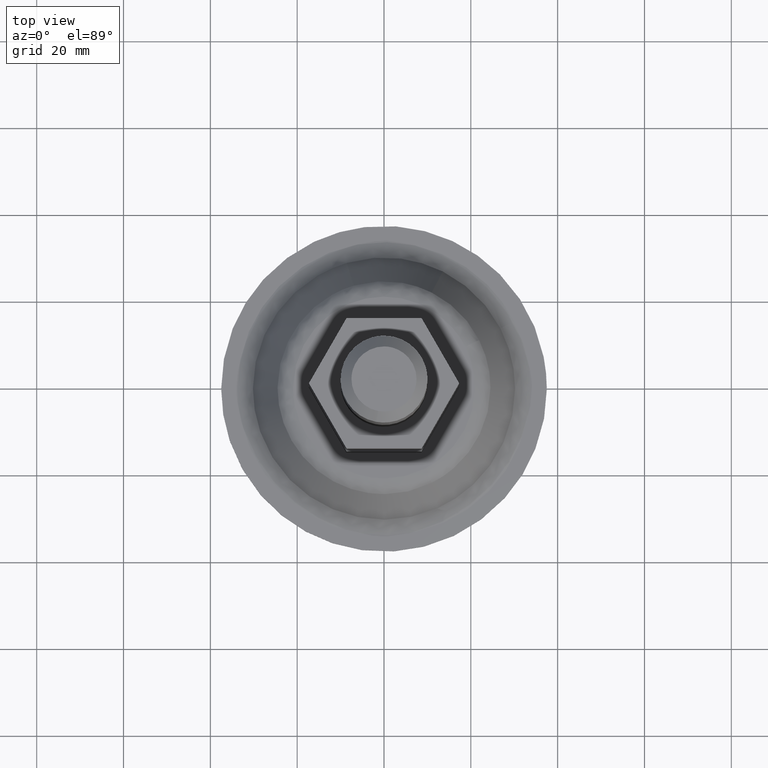
[diagram: clean part render]
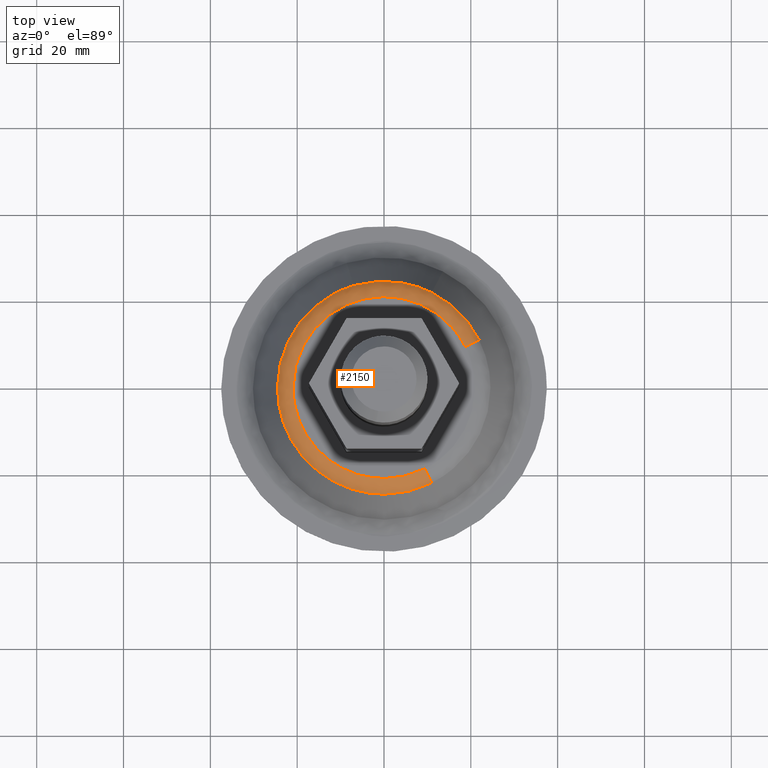
[diagram: same view with one face highlighted and labeled with its STEP entity id]
A machine part, top view. The second image highlights one B-rep face of the part: STEP entity #2150.
In plain terms, the highlighted face is a freeform B-spline surface patch.
Its self-contained STEP definition (entity closure, byte-faithful):
#1388=CARTESIAN_POINT('',(10.983786301854231,21.932624189664441,15.762949531433030));
#1389=VERTEX_POINT('',#1388);
#1395=CARTESIAN_POINT('',(21.925249911092710,10.998499066040230,15.762949531445390));
#1396=VERTEX_POINT('',#1395);
#1397=CARTESIAN_POINT('',(10.983786301854234,21.932624189664441,15.762949531433037));
#1398=CARTESIAN_POINT('',(18.270965896765706,18.283228534961623,15.762949531439100));
#1399=CARTESIAN_POINT('',(21.925249911092706,10.998499066040228,15.762949531445397));
#1407=(BOUNDED_CURVE()B_SPLINE_CURVE(2,(#1397,#1398,#1399),.UNSPECIFIED.,.F.,.U.)B_SPLINE_CURVE_WITH_KNOTS((3,3),(0.326127052925012,0.423769062115704),.UNSPECIFIED.)CURVE()GEOMETRIC_REPRESENTATION_ITEM()RATIONAL_B_SPLINE_CURVE((0.875940413897200,0.831213953431449,0.875845342762707))REPRESENTATION_ITEM(''));
#1408=EDGE_CURVE('',#1389,#1396,#1407,.T.);
#1425=CARTESIAN_POINT('',(10.998499066033020,-21.925249911063101,15.762949531505869));
#1426=VERTEX_POINT('',#1425);
#1440=CARTESIAN_POINT('',(-24.529238988803549,0.0,15.762949531433700));
#1441=VERTEX_POINT('',#1440);
#1442=CARTESIAN_POINT('',(10.998499066033018,-21.925249911063105,15.762949531505871));
#1443=CARTESIAN_POINT('',(5.807507917928271,-24.529238988803552,15.762949531433703));
#1444=CARTESIAN_POINT('',(0.0,-24.529238988803549,15.762949531433700));
#1445=CARTESIAN_POINT('',(-24.529238988803549,-24.529238988803549,15.762949531433700));
#1446=CARTESIAN_POINT('',(-24.529238988803549,0.0,15.762949531433700));
#1454=(BOUNDED_CURVE()B_SPLINE_CURVE(2,(#1442,#1443,#1444,#1445,#1446),.UNSPECIFIED.,.F.,.U.)B_SPLINE_CURVE_WITH_KNOTS((3,2,3),(0.673769062115617,0.750000000000000,1.0),.UNSPECIFIED.)CURVE()GEOMETRIC_REPRESENTATION_ITEM()RATIONAL_B_SPLINE_CURVE((0.875845342762628,0.910689900919499,1.0,0.707106781186547,1.0))REPRESENTATION_ITEM(''));
#1455=EDGE_CURVE('',#1426,#1441,#1454,.T.);
#1457=CARTESIAN_POINT('',(-6.966677018124205,23.519117190267480,15.762953819341680));
#1458=VERTEX_POINT('',#1457);
#1459=CARTESIAN_POINT('',(-24.529238988803549,0.0,15.762949531433700));
#1460=CARTESIAN_POINT('',(-24.529238689827292,18.316852667902086,15.762951675387692));
#1461=CARTESIAN_POINT('',(-6.966677018124205,23.519117190267480,15.762953819341678));
#1469=(BOUNDED_CURVE()B_SPLINE_CURVE(2,(#1459,#1460,#1461),.UNSPECIFIED.,.F.,.U.)B_SPLINE_CURVE_WITH_KNOTS((3,3),(0.0,0.201641535167744),.UNSPECIFIED.)CURVE()GEOMETRIC_REPRESENTATION_ITEM()RATIONAL_B_SPLINE_CURVE((1.0,0.763762246872934,0.908607239386829))REPRESENTATION_ITEM(''));
#1470=EDGE_CURVE('',#1441,#1458,#1469,.T.);
#1572=CARTESIAN_POINT('',(-6.966677018124205,23.519117190267480,15.762953819341678));
#1573=CARTESIAN_POINT('',(-3.556568489665340,24.529237340706974,15.762953032227411));
#1574=CARTESIAN_POINT('',(0.000000370626319,24.529237737570050,15.762952189238099));
#1575=CARTESIAN_POINT('',(5.798818839446494,24.529238384636653,15.762950814783634));
#1576=CARTESIAN_POINT('',(10.983786301854234,21.932624189664441,15.762949531433037));
#1584=(BOUNDED_CURVE()B_SPLINE_CURVE(2,(#1572,#1573,#1574,#1575,#1576),.UNSPECIFIED.,.F.,.U.)B_SPLINE_CURVE_WITH_KNOTS((3,2,3),(0.201641535167744,0.250000000000000,0.326127052925012),.UNSPECIFIED.)CURVE()GEOMETRIC_REPRESENTATION_ITEM()RATIONAL_B_SPLINE_CURVE((0.908607239386829,0.943344534313614,1.0,0.910811609720045,0.875940413897200))REPRESENTATION_ITEM(''));
#1585=EDGE_CURVE('',#1458,#1389,#1584,.T.);
#2053=CARTESIAN_POINT('',(9.294642899871809,-18.528652608911848,17.994512284984971));
#2054=CARTESIAN_POINT('',(-9.234009709040031,-27.823295508783666,17.994512284984971));
#2055=CARTESIAN_POINT('',(-18.528652608911848,-9.294642899871811,17.994512284984971));
#2056=CARTESIAN_POINT('',(-27.823295508783666,9.234009709040031,17.994512284984971));
#2057=CARTESIAN_POINT('',(-9.294642899871812,18.528652608911848,17.994512284984971));
#2058=CARTESIAN_POINT('',(9.234009709040029,27.823295508783666,17.994512284984971));
#2059=CARTESIAN_POINT('',(18.528652608911838,9.294642899871812,17.994512284984971));
#2060=CARTESIAN_POINT('',(10.545410726679879,-21.022028934068988,18.140782316382250));
#2061=CARTESIAN_POINT('',(-10.476618207389107,-31.567439660748860,18.140782316382243));
#2062=CARTESIAN_POINT('',(-21.022028934068988,-10.545410726679879,18.140782316382250));
#2063=CARTESIAN_POINT('',(-31.567439660748860,10.476618207389107,18.140782316382243));
#2064=CARTESIAN_POINT('',(-10.545410726679885,21.022028934068988,18.140782316382250));
#2065=CARTESIAN_POINT('',(10.476618207389103,31.567439660748860,18.140782316382243));
#2066=CARTESIAN_POINT('',(21.022028934068988,10.545410726679885,18.140782316382250));
#2067=CARTESIAN_POINT('',(11.037727055620422,-22.003449988207585,15.572285105118571));
#2068=CARTESIAN_POINT('',(-10.965722932587171,-33.041177043828014,15.572285105118565));
#2069=CARTESIAN_POINT('',(-22.003449988207585,-11.037727055620422,15.572285105118571));
#2070=CARTESIAN_POINT('',(-33.041177043828014,10.965722932587168,15.572285105118565));
#2071=CARTESIAN_POINT('',(-11.037727055620433,22.003449988207585,15.572285105118571));
#2072=CARTESIAN_POINT('',(10.965722932587166,33.041177043828014,15.572285105118565));
#2073=CARTESIAN_POINT('',(22.003449988207585,11.037727055620433,15.572285105118571));
#2081=(BOUNDED_SURFACE()B_SPLINE_SURFACE(2,2,((#2053,#2060,#2067),(#2054,#2061,#2068),(#2055,#2062,#2069),(#2056,#2063,#2070),(#2057,#2064,#2071),(#2058,#2065,#2072),(#2059,#2066,#2073)),.UNSPECIFIED.,.F.,.F.,.U.)B_SPLINE_SURFACE_WITH_KNOTS((3,2,2,3),(3,3),(0.0,40.786328124221413,81.572656248442826,122.358984372664200),(0.0,5.033719259317195),.UNSPECIFIED.)GEOMETRIC_REPRESENTATION_ITEM()RATIONAL_B_SPLINE_SURFACE(((0.923693141034011,0.756838403288658,0.922540802781788),(0.653149683760651,0.535165567227809,0.652334857568283),(0.923693141034011,0.756838403288658,0.922540802781788),(0.653149683760651,0.535165567227809,0.652334857568283),(0.923693141034011,0.756838403288658,0.922540802781788),(0.653149683760651,0.535165567227809,0.652334857568283),(0.923693141034011,0.756838403288658,0.922540802781788)))REPRESENTATION_ITEM('')SURFACE());
#2082=CARTESIAN_POINT('',(9.388559229795927,-18.715872609618781,18.000000000000099));
#2083=VERTEX_POINT('',#2082);
#2084=CARTESIAN_POINT('',(-20.938694608125552,0.0,18.0));
#2085=VERTEX_POINT('',#2084);
#2086=CARTESIAN_POINT('',(9.388559229795927,-18.715872609618781,18.000000000000107));
#2087=CARTESIAN_POINT('',(4.957415710473247,-20.938694608125552,18.0));
#2088=CARTESIAN_POINT('',(0.0,-20.938694608125552,18.0));
#2089=CARTESIAN_POINT('',(-20.938694608125555,-20.938694608125555,18.000000000000007));
#2090=CARTESIAN_POINT('',(-20.938694608125552,0.0,18.0));
#2098=(BOUNDED_CURVE()B_SPLINE_CURVE(2,(#2086,#2087,#2088,#2089,#2090),.UNSPECIFIED.,.F.,.U.)B_SPLINE_CURVE_WITH_KNOTS((3,2,3),(0.673769062114889,0.750000000000000,1.0),.UNSPECIFIED.)CURVE()GEOMETRIC_REPRESENTATION_ITEM()RATIONAL_B_SPLINE_CURVE((0.875845342761962,0.910689900918646,1.0,0.707106781186548,1.0))REPRESENTATION_ITEM(''));
#2099=EDGE_CURVE('',#2083,#2085,#2098,.T.);
#2100=ORIENTED_EDGE('',*,*,#2099,.T.);
#2101=CARTESIAN_POINT('',(18.715872609856451,9.388559229932696,18.000000000000099));
#2102=VERTEX_POINT('',#2101);
#2103=CARTESIAN_POINT('',(-20.938694608125552,0.0,18.0));
#2104=CARTESIAN_POINT('',(-20.938694608125555,20.938694608125555,18.000000000000007));
#2105=CARTESIAN_POINT('',(0.0,20.938694608125552,18.0));
#2106=CARTESIAN_POINT('',(12.921906578546297,20.938694608125545,17.999999999999996));
#2107=CARTESIAN_POINT('',(18.715872609856444,9.388559229932696,18.000000000000096));
#2115=(BOUNDED_CURVE()B_SPLINE_CURVE(2,(#2103,#2104,#2105,#2106,#2107),.UNSPECIFIED.,.F.,.U.)B_SPLINE_CURVE_WITH_KNOTS((3,2,3),(0.0,0.250000000000000,0.423769062114657),.UNSPECIFIED.)CURVE()GEOMETRIC_REPRESENTATION_ITEM()RATIONAL_B_SPLINE_CURVE((1.0,0.707106781186548,1.0,0.796416880268173,0.875845342761750))REPRESENTATION_ITEM(''));
#2116=EDGE_CURVE('',#2085,#2102,#2115,.T.);
#2117=ORIENTED_EDGE('',*,*,#2116,.T.);
#2118=CARTESIAN_POINT('',(18.715872609856444,9.388559229932696,18.000000000000096));
#2119=CARTESIAN_POINT('',(20.943466160267821,10.506000795309365,17.999999997917815));
#2120=CARTESIAN_POINT('',(21.925249911092710,10.998499066040228,15.762949531445393));
#2128=(BOUNDED_CURVE()B_SPLINE_CURVE(2,(#2118,#2119,#2120),.UNSPECIFIED.,.F.,.U.)B_SPLINE_CURVE_WITH_KNOTS((3,3),(-1.657824830014781,-0.347170207456632),.UNSPECIFIED.)CURVE()GEOMETRIC_REPRESENTATION_ITEM()RATIONAL_B_SPLINE_CURVE((0.909224137773120,0.771255055092876,0.908176502131472))REPRESENTATION_ITEM(''));
#2129=EDGE_CURVE('',#2102,#1396,#2128,.T.);
#2130=ORIENTED_EDGE('',*,*,#2129,.T.);
#2131=ORIENTED_EDGE('',*,*,#1408,.F.);
#2132=ORIENTED_EDGE('',*,*,#1585,.F.);
#2133=ORIENTED_EDGE('',*,*,#1470,.F.);
#2134=ORIENTED_EDGE('',*,*,#1455,.F.);
#2135=CARTESIAN_POINT('',(9.388559229795927,-18.715872609618778,18.000000000000103));
#2136=CARTESIAN_POINT('',(10.506000795192323,-20.943466160034497,17.999999998258939));
#2137=CARTESIAN_POINT('',(10.998499066033018,-21.925249911063101,15.762949531505878));
#2145=(BOUNDED_CURVE()B_SPLINE_CURVE(2,(#2135,#2136,#2137),.UNSPECIFIED.,.F.,.U.)B_SPLINE_CURVE_WITH_KNOTS((3,3),(-1.657824830184511,-0.347170207498358),.UNSPECIFIED.)CURVE()GEOMETRIC_REPRESENTATION_ITEM()RATIONAL_B_SPLINE_CURVE((0.909224137808854,0.771255055079537,0.908176502122754))REPRESENTATION_ITEM(''));
#2146=EDGE_CURVE('',#2083,#1426,#2145,.T.);
#2147=ORIENTED_EDGE('',*,*,#2146,.F.);
#2148=EDGE_LOOP('',(#2100,#2117,#2130,#2131,#2132,#2133,#2134,#2147));
#2149=FACE_OUTER_BOUND('',#2148,.T.);
#2150=ADVANCED_FACE('',(#2149),#2081,.T.);